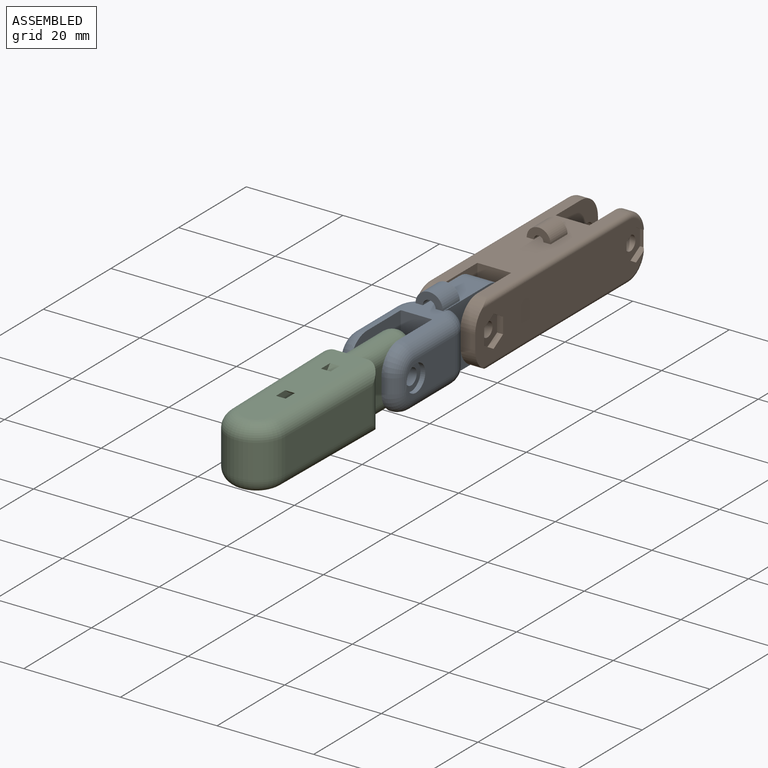
[diagram: assembled view]
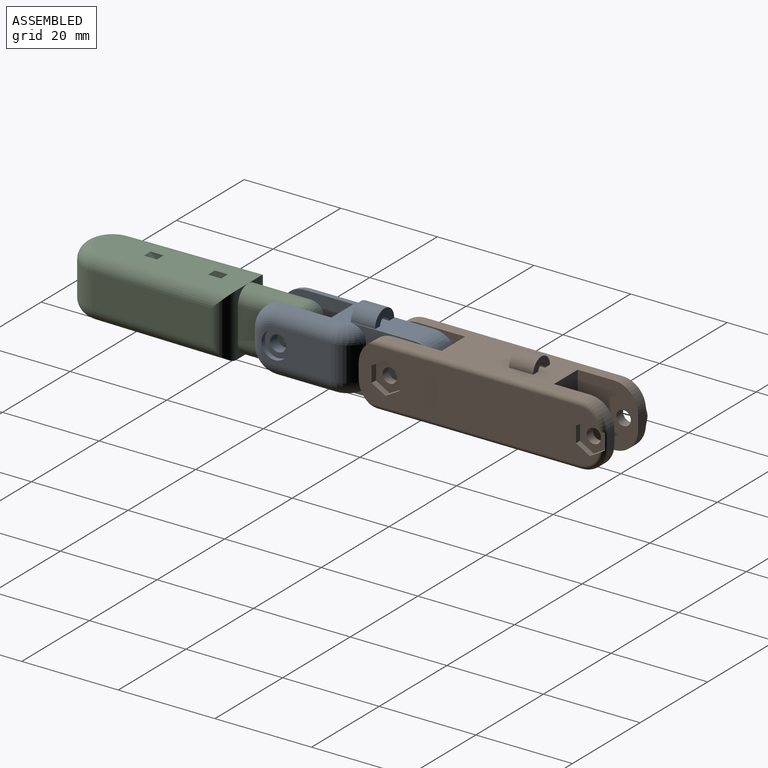
[diagram: assembled view, second angle]
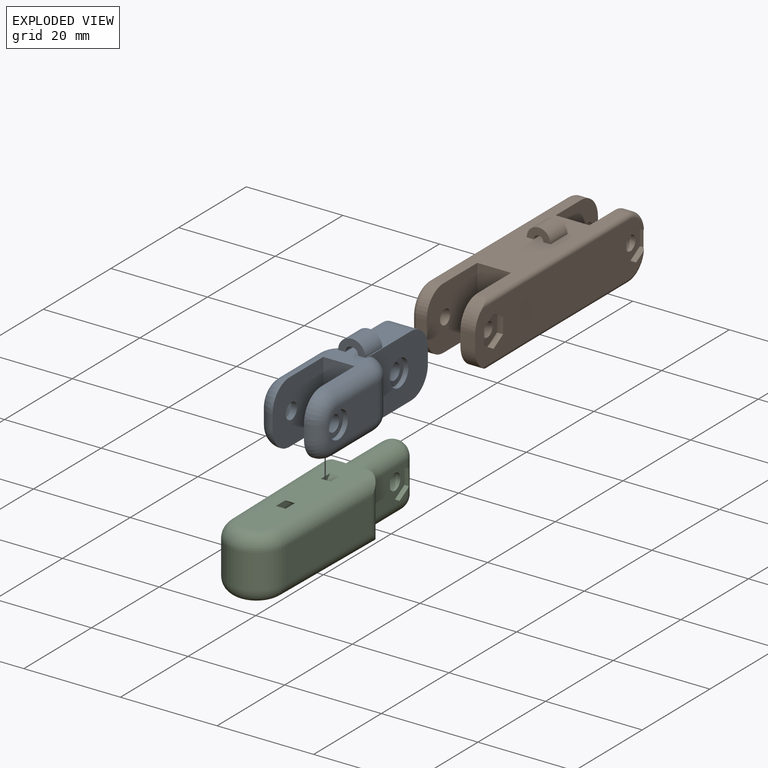
[diagram: exploded view]
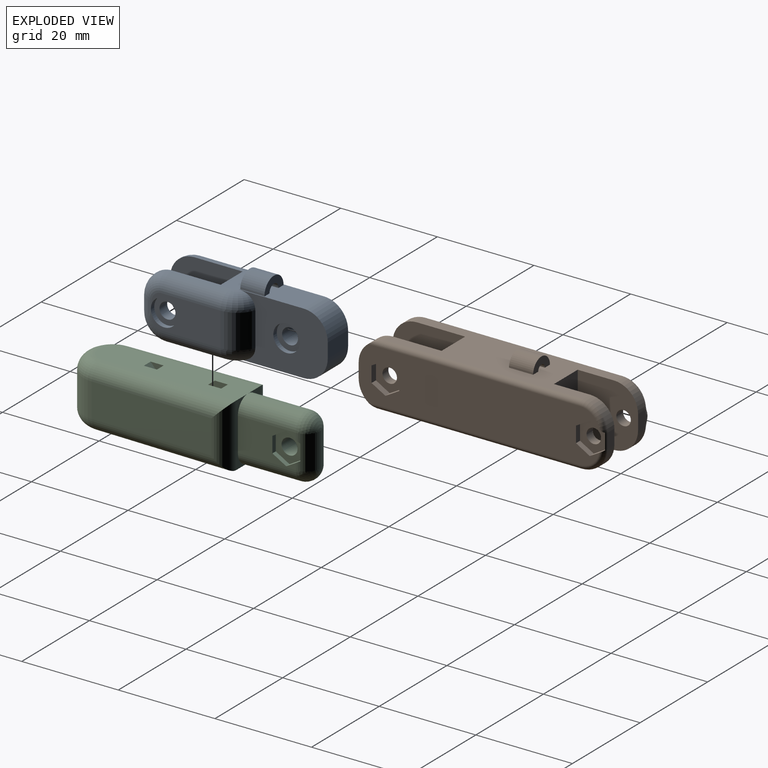
[diagram: exploded view, second angle]
ASSEMBLY  parts=3 mates=2
PART A: 63 faces, bbox 15.8x13x37 mm
  f0: plane 27x7mm, normal (1,0,0), area 101.1mm2, adj f3,f7,f10,f11,f12,f38,f39,f40
  f1: plane 27x7mm, normal (-1,0,0), area 95.1mm2, adj f3,f7,f10,f11,f12,f35,f36,f37
  f2: cylinder r=1.65mm len=4mm, axis (0,-1,0), area 41.5mm2, adj f24,f26
  f3: plane 18.45x13mm, normal (0,-1,0), area 161.7mm2, adj f0,f1,f6,f27,f28,f29,f30,f31
  f4: cylinder r=1.65mm len=3.3mm, axis (0,-1,0), area 23.3mm2, adj f10,f23
  f5: plane 14.23x7mm, normal (0,-1,0), area 72.3mm2, adj f15,f16,f17,f18,f19,f20,f34,f43
  f6: plane 6x3mm, normal (0,0,-1), area 18mm2, adj f3,f7,f37,f40
  f7: plane 18.45x13mm, normal (0,1,0), area 164.7mm2, adj f0,f1,f6,f25,f33,f37,f40,f48
  f8: plane 14.23x7mm, normal (0,1,0), area 74.4mm2, adj f22,f33,f50,f51,f52,f53,f54
  f9: plane 3x0.25mm, normal (0,0,1), area 0.7mm2, adj f10,f35,f38,f54
  f10: plane 15x13mm, normal (0,-1,0), area 175.7mm2, adj f0,f1,f4,f9,f11,f35,f38
  f11: plane 13x6.5mm, normal (0,0,1), area 84.5mm2, adj f0,f1,f10,f12
  f12: plane 15x13mm, normal (0,1,0), area 175.7mm2, adj f0,f1,f11,f13,f14,f36,f39
  f13: plane 3x0.25mm, normal (0,0,1), area 0.7mm2, adj f12,f36,f39,f47
  f14: cylinder r=1.65mm len=3.3mm, axis (0,-1,0), area 13mm2, adj f12,f21
  f15: plane 2.75x2mm, normal (0.5,0,0.87), area 6.4mm2, adj f5,f16,f20,f21
  f16: plane 2.75x2mm, normal (-0.5,0,0.87), area 6.4mm2, adj f5,f15,f17,f21
  f17: plane 3.18x2mm, normal (-1,0,0), area 6.4mm2, adj f5,f16,f18,f21
  f18: plane 2.76x2.01mm, normal (-0.5,0,-0.87), area 6.3mm2, adj f5,f17,f19,f21,f47
  f19: plane 2.76x2.01mm, normal (0.5,0,-0.87), area 6.3mm2, adj f5,f18,f20,f21,f47
  f20: plane 3.18x2mm, normal (1,0,0), area 6.4mm2, adj f5,f15,f19,f21
  f21: plane 6.35x5.5mm, normal (0,-1,0), area 17.6mm2, adj f14,f15,f16,f17,f18,f19,f20
  f22: cylinder r=2.75mm len=5.5mm, axis (0,1,0), area 17.3mm2, adj f8,f23,f54
  f23: plane 5.5x5.5mm, normal (0,1,0), area 15.2mm2, adj f4,f22
  f24: plane 5.5x5.5mm, normal (0,1,0), area 15.2mm2, adj f2,f25
  f25: cylinder r=2.75mm len=5.5mm, axis (0,1,0), area 17.3mm2, adj f7,f24
  f26: plane 6.41x5.55mm, normal (0,-1,0), area 18.1mm2, adj f2,f27,f28,f29,f30,f31,f32
  f27: plane 3.21x1mm, normal (0,0,-1), area 3.2mm2, adj f3,f26,f28,f32
  f28: plane 2.78x1.6mm, normal (0.87,0,-0.5), area 3.2mm2, adj f3,f26,f27,f29
  f29: plane 2.78x1.6mm, normal (0.87,0,0.5), area 3.2mm2, adj f3,f26,f28,f30
  f30: plane 3.21x1mm, normal (0,0,1), area 3.2mm2, adj f3,f26,f29,f31
  f31: plane 2.78x1.6mm, normal (-0.87,0,0.5), area 3.2mm2, adj f3,f26,f30,f32
  f32: plane 2.78x1.6mm, normal (-0.87,0,-0.5), area 3.2mm2, adj f3,f26,f27,f31
  f33: cylinder r=5mm len=7mm, axis (1,0,0), area 44.3mm2, adj f7,f8,f48,f49
  f34: cylinder r=5mm len=7mm, axis (-1,0,0), area 44.3mm2, adj f3,f5,f41,f42
  f35: cylinder r=5mm len=5mm, axis (0,-1,0), area 2mm2, adj f1,f9,f10,f53
  f36: cylinder r=5mm len=5mm, axis (0,-1,0), area 2mm2, adj f1,f12,f13,f46
  f37: cylinder r=5mm len=6mm, axis (0,1,0), area 47.1mm2, adj f1,f3,f6,f7
  f38: cylinder r=5mm len=5mm, axis (0,1,0), area 2mm2, adj f0,f9,f10,f52
  f39: cylinder r=5mm len=5mm, axis (0,1,0), area 2mm2, adj f0,f12,f13,f45
  f40: cylinder r=5mm len=6mm, axis (0,-1,0), area 47.1mm2, adj f0,f3,f6,f7
  f41: torus R=2mm, axis (1,0,0), area 21.6mm2, adj f0,f3,f34,f43
  f42: torus R=2mm, axis (1,0,0), area 21.6mm2, adj f1,f3,f34,f44
  f43: cylinder r=3mm len=12.23mm, axis (0,0,1), area 57.6mm2, adj f0,f5,f41,f45
  f44: cylinder r=3mm len=12.23mm, axis (0,0,-1), area 57.6mm2, adj f1,f5,f42,f46
  f45: torus R=2mm, axis (0,1,0), area 28.9mm2, adj f5,f39,f43,f47
  f46: torus R=2mm, axis (0,1,0), area 28.9mm2, adj f5,f36,f44,f47
  f47: cylinder r=3mm len=3mm, axis (1,0,0), area 13.5mm2, adj f5,f13,f18,f19,f45,f46
  f48: torus R=2mm, axis (1,0,0), area 21.6mm2, adj f0,f7,f33,f50
  f49: torus R=2mm, axis (1,0,0), area 21.6mm2, adj f1,f7,f33,f51
  f50: cylinder r=3mm len=12.23mm, axis (0,0,-1), area 57.6mm2, adj f0,f8,f48,f52
  f51: cylinder r=3mm len=12.23mm, axis (0,0,1), area 57.6mm2, adj f1,f8,f49,f53
  f52: torus R=2mm, axis (0,1,0), area 28.9mm2, adj f8,f38,f50,f54
  f53: torus R=2mm, axis (0,1,0), area 28.9mm2, adj f8,f35,f51,f54
  f54: cylinder r=3mm len=3mm, axis (-1,0,0), area 13.9mm2, adj f8,f9,f22,f52,f53
  f55: cylinder r=1.33mm len=5mm, axis (0,0,1), area 20.9mm2, adj f1,f57,f58
  f56: cylinder r=2.83mm len=5.66mm, axis (0,0,1), area 44.5mm2, adj f1,f57,f58
  f57: plane 5.66x2.83mm, normal (0,0,-1), area 9.8mm2, adj f1,f55,f56
  f58: plane 5.66x2.83mm, normal (0,0,1), area 9.8mm2, adj f1,f55,f56
  f59: cylinder r=6.5mm len=12mm, axis (0,-1,0), area 30.6mm2, adj f0,f61,f62
  f60: cylinder r=4.5mm len=7.48mm, axis (0,-1,0), area 17.7mm2, adj f0,f61,f62
  f61: plane 12x4mm, normal (0,-1,0), area 24.2mm2, adj f0,f59,f60
  f62: plane 12x4mm, normal (0,1,0), area 24.2mm2, adj f0,f59,f60
PART B: 70 faces, bbox 13.5x51.7x16 mm
  f0: plane 40.75x11.08mm, normal (0,0,-1), area 315.3mm2, adj f7,f8,f9,f13,f14,f15,f18,f19
  f1: plane 34.69x11mm, normal (1,0,0), area 350.5mm2, adj f11,f38,f39,f40,f42,f43,f46,f47
  f2: cylinder r=1.5mm len=3mm, axis (-1,0,0), area 16.4mm2, adj f9,f31
  f3: cylinder r=1.5mm len=3mm, axis (-1,0,0), area 18.8mm2, adj f15,f30
  f4: cylinder r=1.5mm len=3mm, axis (-1,0,0), area 19.4mm2, adj f7,f27
  f5: plane 48.71x11mm, normal (-1,0,0), area 473.9mm2, adj f28,f29,f52,f54,f56,f58,f59,f60
  f6: plane 3x2.06mm, normal (0,-1,0), area 6.2mm2, adj f7,f19,f25,f58
  f7: plane 15x13mm, normal (1,0,0), area 177.2mm2, adj f0,f4,f6,f8,f17,f19,f25
  f8: plane 13x7mm, normal (0,-1,0), area 91mm2, adj f0,f7,f9,f17
  f9: plane 15x13mm, normal (-1,0,0), area 177.2mm2, adj f0,f2,f8,f10,f17,f18,f24
  f10: plane 3.06x3mm, normal (0,-1,0), area 9.2mm2, adj f9,f11,f18,f24
  f11: plane 15.01x11.01mm, normal (1,0.01,0), area 132mm2, adj f1,f10,f18,f24,f32,f33,f34,f35
  f12: plane 3x2mm, normal (0,1,0), area 6mm2, adj f13,f20,f23,f48
  f13: plane 13x12.5mm, normal (-1,0,0), area 144.7mm2, adj f0,f12,f14,f17,f20,f23,f26
  f14: plane 13x7mm, normal (0,1,0), area 91mm2, adj f0,f13,f15,f17
  f15: plane 13x12.5mm, normal (1,0,0), area 144.7mm2, adj f0,f3,f14,f16,f17,f21,f22
  f16: plane 3x2.48mm, normal (0,1,0), area 6.9mm2, adj f15,f21,f22,f55
  f17: plane 40.75x11.08mm, normal (0,0,1), area 311.2mm2, adj f7,f8,f9,f13,f14,f15,f22,f23
  f18: cylinder r=5mm len=5mm, axis (1,0,0), area 22.3mm2, adj f0,f9,f10,f11,f51
  f19: cylinder r=5mm len=5mm, axis (1,0,0), area 16.2mm2, adj f0,f6,f7,f56
  f20: cylinder r=5mm len=5mm, axis (-1,0,0), area 15.7mm2, adj f0,f12,f13,f49
  f21: cylinder r=5mm len=5mm, axis (-1,0,0), area 15.7mm2, adj f0,f15,f16,f52,f53
  f22: cylinder r=5mm len=5mm, axis (1,0,0), area 15.7mm2, adj f15,f16,f17,f57,f59
  f23: cylinder r=5mm len=5mm, axis (1,0,0), area 15.7mm2, adj f12,f13,f17,f47
  f24: cylinder r=5mm len=5mm, axis (-1,0,0), area 22.3mm2, adj f9,f10,f11,f17,f45
  f25: cylinder r=5mm len=5mm, axis (-1,0,0), area 16.2mm2, adj f6,f7,f17,f60
  f26: cylinder r=1.5mm len=3mm, axis (-1,0,0), area 17mm2, adj f13,f44
  f27: plane 5.7x5.7mm, normal (-1,0,0), area 18.4mm2, adj f4,f28
  f28: cylinder r=2.85mm len=5.7mm, axis (-1,0,0), area 17.9mm2, adj f5,f27
  f29: cylinder r=2.85mm len=5.7mm, axis (-1,0,0), area 17.9mm2, adj f5,f30,f53,f55,f57
  f30: plane 5.7x5.7mm, normal (-1,0,0), area 18.4mm2, adj f3,f29
  f31: plane 6.58x5.7mm, normal (1,0,0), area 21.1mm2, adj f2,f32,f33,f34,f35,f36,f37
  f32: plane 3.29x1.3mm, normal (0,1,0), area 4.3mm2, adj f11,f31,f33,f37
  f33: plane 2.85x1.65mm, normal (0,0.5,0.87), area 4.2mm2, adj f11,f31,f32,f34
  f34: plane 2.85x1.65mm, normal (0,-0.5,0.87), area 4.2mm2, adj f11,f31,f33,f35
  f35: plane 3.29x1.26mm, normal (0,-1,0), area 4.1mm2, adj f11,f31,f34,f36
  f36: plane 2.85x1.65mm, normal (0,-0.5,-0.87), area 4.2mm2, adj f11,f31,f35,f37
  f37: plane 2.85x1.65mm, normal (0,0.5,-0.87), area 4.2mm2, adj f11,f31,f32,f36
  f38: plane 3.29x1.2mm, normal (0,1,0), area 3.9mm2, adj f1,f39,f43,f44
  f39: plane 2.85x1.65mm, normal (0,0.5,0.87), area 3.9mm2, adj f1,f38,f40,f44
  f40: plane 2.99x1.79mm, normal (0,-0.5,0.87), area 3.8mm2, adj f1,f39,f41,f44,f49
  f41: plane 3.29x0.73mm, normal (0,-1,0), area 2.4mm2, adj f40,f42,f44,f47,f48,f49
  f42: plane 2.99x1.79mm, normal (0,-0.5,-0.87), area 3.8mm2, adj f1,f41,f43,f44,f47
  f43: plane 2.85x1.65mm, normal (0,0.5,-0.87), area 3.9mm2, adj f1,f38,f42,f44
  f44: plane 6.58x5.7mm, normal (1,0,0), area 21.1mm2, adj f26,f38,f39,f40,f41,f42,f43
  f45: cylinder r=1mm len=13.01mm, axis (0.01,-1,0), area 18.1mm2, adj f11,f17,f24,f46
  f46: cylinder r=1mm len=30.75mm, axis (0,-1,0), area 48.3mm2, adj f1,f17,f45,f47
  f47: torus R=4mm, axis (1,0,0), area 11mm2, adj f1,f23,f41,f42,f46,f48
  f48: cylinder r=1mm len=3mm, axis (0,0,-1), area 1.7mm2, adj f12,f41,f47,f49
  f49: torus R=4mm, axis (1,0,0), area 11mm2, adj f1,f20,f40,f41,f48,f50
  f50: cylinder r=1mm len=30.75mm, axis (0,1,0), area 48.3mm2, adj f0,f1,f49,f51
  f51: cylinder r=1mm len=13.01mm, axis (-0.01,1,0), area 18.1mm2, adj f0,f11,f18,f50
  f52: torus R=4mm, axis (1,0,0), area 10.4mm2, adj f5,f21,f53,f54
  f53: bspline ~1.08x1.03mm, area 0.8mm2, adj f21,f29,f52,f55
  f54: cylinder r=1mm len=40.75mm, axis (0,-1,0), area 64mm2, adj f0,f5,f52,f56
  f55: bspline ~3.72x0.98mm, area 2.7mm2, adj f16,f29,f53,f57
  f56: torus R=4mm, axis (1,0,0), area 11.4mm2, adj f5,f19,f54,f58
  f57: bspline ~1.42x1.25mm, area 0.8mm2, adj f22,f29,f55,f59
  f58: cylinder r=1mm len=3mm, axis (0,0,-1), area 4.7mm2, adj f5,f6,f56,f60
  f59: torus R=4mm, axis (1,0,0), area 10.4mm2, adj f5,f22,f57,f61
  f60: torus R=4mm, axis (1,0,0), area 11.4mm2, adj f5,f25,f58,f61
  f61: cylinder r=1mm len=40.75mm, axis (0,1,0), area 64mm2, adj f5,f17,f59,f60
  f62: cylinder r=2.49mm len=5mm, axis (0,1,0), area 39mm2, adj f17,f64,f65
  f63: cylinder r=0.99mm len=5mm, axis (0,1,0), area 15.5mm2, adj f17,f64,f65
  f64: plane 4.97x2.49mm, normal (0,-1,0), area 8.2mm2, adj f17,f62,f63
  f65: plane 4.97x2.49mm, normal (0,1,0), area 8.2mm2, adj f17,f62,f63
  f66: cylinder r=8mm len=10.58mm, axis (1,0,0), area 23.1mm2, adj f0,f68,f69
  f67: cylinder r=10mm len=16mm, axis (1,0,0), area 37.1mm2, adj f0,f68,f69
  f68: plane 16x4mm, normal (1,0,0), area 30.2mm2, adj f0,f66,f67
  f69: plane 16x4mm, normal (-1,0,0), area 30.2mm2, adj f0,f66,f67
PART C: 40 faces, bbox 13x14.7x49.6 mm
  f0: plane 31.06x7mm, normal (0,1,0), area 185.7mm2, adj f6,f10,f13,f15,f16,f17,f18,f36
  f1: plane 31.06x7mm, normal (0,-1,0), area 190.8mm2, adj f6,f10,f11,f12,f13,f14,f16,f32
  f2: cylinder r=1.65mm len=4mm, axis (-1,0,0), area 41.5mm2, adj f29,f31
  f3: plane 12.01x7.01mm, normal (-1,0,0), area 60.8mm2, adj f4,f10,f19,f20,f30
  f4: cylinder r=3mm len=7mm, axis (0,1,0), area 60.3mm2, adj f3,f5,f21,f22,f23,f24,f25,f30
  f5: plane 12x7mm, normal (1,0,0), area 59.1mm2, adj f4,f6,f19,f20,f23,f25,f26,f27
  f6: plane 13x3.45mm, normal (0,0,-1), area 9.7mm2, adj f0,f1,f5,f16,f19,f20
  f7: plane 25.11x7mm, normal (1,0,0.02), area 175.8mm2, adj f8,f14,f16,f18
  f8: cylinder r=6mm len=12mm, axis (0,1,0), area 130.5mm2, adj f7,f9,f12,f17
  f9: plane 25.11x7mm, normal (-1,0,0.02), area 175.8mm2, adj f8,f11,f13,f15
  f10: plane 13x3.45mm, normal (0,0,-1), area 9.7mm2, adj f0,f1,f3,f13,f19,f20
  f11: cylinder r=3mm len=28.16mm, axis (0.02,0,1), area 125.4mm2, adj f1,f9,f12,f13
  f12: torus R=3mm, axis (0,-1,0), area 71.9mm2, adj f1,f8,f11,f14
  f13: cylinder r=3mm len=13mm, axis (0,-1,0), area 51.7mm2, adj f0,f1,f9,f10,f11,f15
  f14: cylinder r=3mm len=28.16mm, axis (0.02,0,-1), area 125.4mm2, adj f1,f7,f12,f16
  f15: cylinder r=3mm len=28.16mm, axis (-0.02,0,-1), area 125.4mm2, adj f0,f9,f13,f17
  f16: cylinder r=3mm len=13mm, axis (0,1,0), area 51.7mm2, adj f0,f1,f6,f7,f14,f18
  f17: torus R=3mm, axis (0,-1,0), area 71.9mm2, adj f0,f8,f15,f18
  f18: cylinder r=3mm len=28.16mm, axis (-0.02,0,1), area 125.4mm2, adj f0,f7,f16,f17
  f19: cylinder r=3mm len=12mm, axis (0,0,1), area 113.1mm2, adj f3,f5,f6,f10,f22
  f20: cylinder r=3mm len=12mm, axis (0,0,-1), area 113.1mm2, adj f3,f5,f6,f10,f21
  f21: sphere r=3mm, area 28.3mm2, adj f4,f20
  f22: sphere r=3mm, area 28.3mm2, adj f4,f19
  f23: plane 2.86x1.65mm, normal (0,0.87,0.5), area 3.3mm2, adj f4,f5,f24,f28,f29
  f24: plane 3.29x0.88mm, normal (0,0,1), area 2.9mm2, adj f4,f23,f25,f29
  f25: plane 2.86x1.65mm, normal (0,-0.87,0.5), area 3.3mm2, adj f4,f5,f24,f26,f29
  f26: plane 2.85x1.65mm, normal (0,-0.87,-0.5), area 3.3mm2, adj f5,f25,f27,f29
  f27: plane 3.29x1mm, normal (0,0,-1), area 3.3mm2, adj f5,f26,f28,f29
  f28: plane 2.85x1.65mm, normal (0,0.87,-0.5), area 3.3mm2, adj f5,f23,f27,f29
  f29: plane 6.58x5.7mm, normal (1,0,0), area 19.6mm2, adj f2,f23,f24,f25,f26,f27,f28
  f30: cylinder r=2.85mm len=5.7mm, axis (-1,0,0), area 17.8mm2, adj f3,f4,f31
  f31: plane 5.7x5.7mm, normal (-1,0,0), area 17mm2, adj f2,f30
  f32: cylinder r=1.15mm len=5mm, axis (0,0,-1), area 18.1mm2, adj f1,f34,f35
  f33: cylinder r=1.72mm len=5mm, axis (0,0,-1), area 27.1mm2, adj f1,f34,f35
  f34: plane 3.45x1.72mm, normal (0,0,1), area 2.6mm2, adj f1,f32,f33
  f35: plane 3.45x1.72mm, normal (0,0,-1), area 2.6mm2, adj f1,f32,f33
  f36: cylinder r=8mm len=10.58mm, axis (1,0,0), area 23.1mm2, adj f0,f38,f39
  f37: cylinder r=10mm len=16mm, axis (1,0,0), area 37.1mm2, adj f0,f38,f39
  f38: plane 16x4mm, normal (1,0,0), area 30.2mm2, adj f0,f36,f37
  f39: plane 16x4mm, normal (-1,0,0), area 30.2mm2, adj f0,f36,f37
PLACE A rot(axis=(0.58,0.58,-0.58),120deg) t=(-21.9,-51.81,-31.97)mm
PLACE B t=(-21.39,-11.87,-38.47)mm
PLACE C rot(axis=(1,0,0),90deg) t=(-21.2,-81.86,-25.47)mm
MATE revolute A.f2 <-> B.f2  axis (-1,0,0) through (-23.33,-37.09,-31.97)mm
MATE revolute C.f2 <-> A.f4  axis (1,0,0) through (-19.2,-60,-31.97)mm
